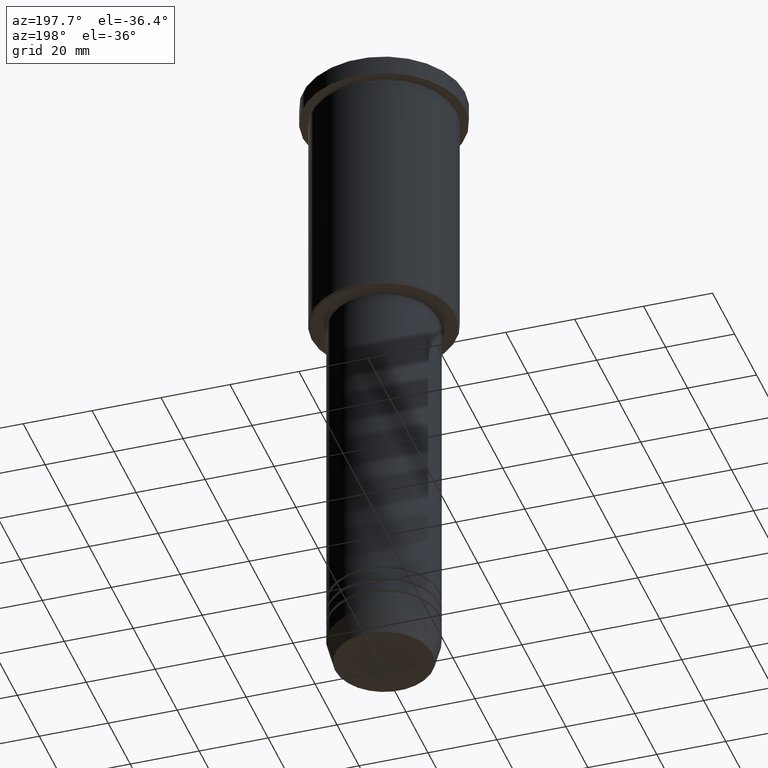
[diagram: clean part render]
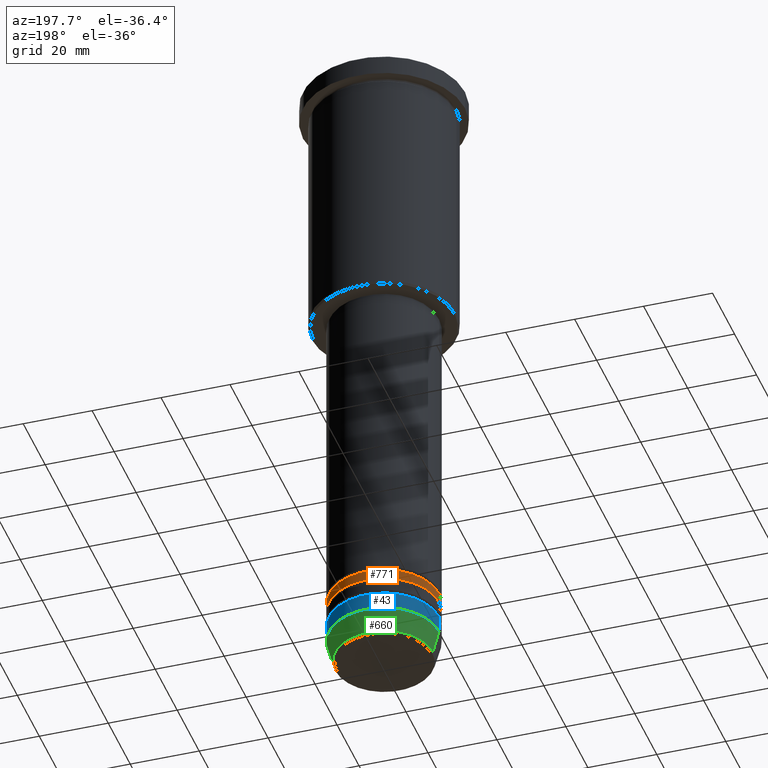
[diagram: same view with three faces highlighted in distinct colors, each labeled with its STEP entity id]
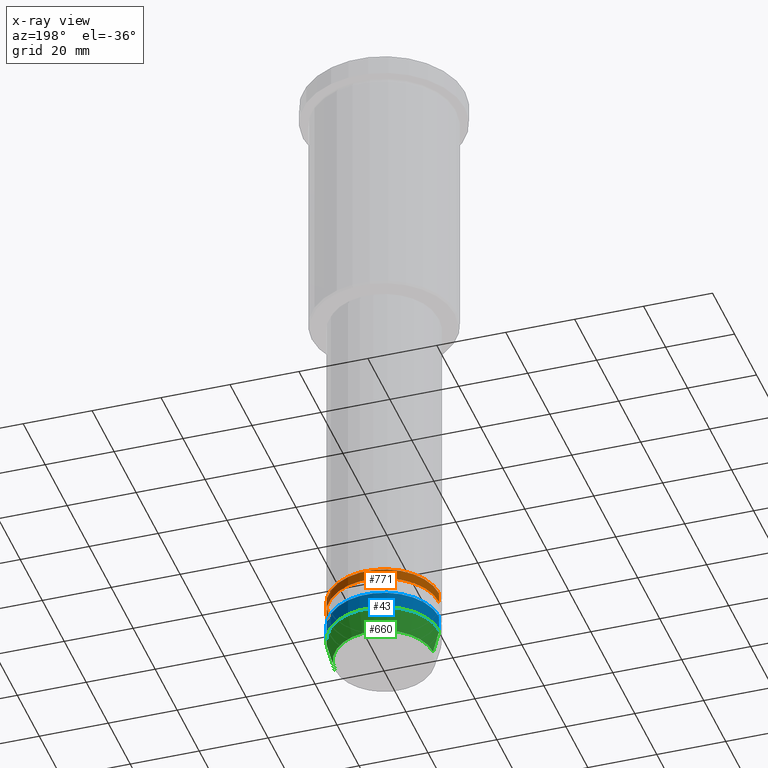
[diagram: x-ray of the same camera — body ghosted, the three highlighted faces saturated]
A machine part, auxiliary view with three faces highlighted in distinct colors.
The next image is the same camera in x-ray (body ghosted, the three faces saturated) — at least one of them is partly hidden behind the body in this view.
Their STEP definitions:

[orange] entity #771 — the highlighted cylindrical surface (partial cylindrical patch) has radius 16 mm, axis along (-0, -0, 1).
#35 = ORIENTED_EDGE ( 'NONE', *, *, #778, .T. ) ;
#36 = DIRECTION ( 'NONE',  ( -0.000000000000000000, -0.000000000000000000, 1.000000000000000000 ) ) ;
#49 = CYLINDRICAL_SURFACE ( 'NONE', #143, 16.00000000000000000 ) ;
#100 = VERTEX_POINT ( 'NONE', #705 ) ;
#129 = CARTESIAN_POINT ( 'NONE',  ( 16.00000000000000000, 0.000000000000000000, -170.9999999999999147 ) ) ;
#143 = AXIS2_PLACEMENT_3D ( 'NONE', #225, #36, #303 ) ;
#183 = VECTOR ( 'NONE', #364, 1000.000000000000000 ) ;
#225 = CARTESIAN_POINT ( 'NONE',  ( 0.000000000000000000, 0.000000000000000000, 0.000000000000000000 ) ) ;
#258 = CIRCLE ( 'NONE', #349, 16.00000000000000000 ) ;
#303 = DIRECTION ( 'NONE',  ( 1.000000000000000000, 0.000000000000000000, 0.000000000000000000 ) ) ;
#321 = VERTEX_POINT ( 'NONE', #129 ) ;
#326 = VERTEX_POINT ( 'NONE', #942 ) ;
#349 = AXIS2_PLACEMENT_3D ( 'NONE', #1161, #775, #609 ) ;
#358 = CARTESIAN_POINT ( 'NONE',  ( 16.00000000000000000, 0.000000000000000000, 0.000000000000000000 ) ) ;
#364 = DIRECTION ( 'NONE',  ( -0.000000000000000000, -0.000000000000000000, 1.000000000000000000 ) ) ;
#388 = CIRCLE ( 'NONE', #709, 16.00000000000000355 ) ;
#402 = DIRECTION ( 'NONE',  ( -0.000000000000000000, -0.000000000000000000, 1.000000000000000000 ) ) ;
#438 = EDGE_CURVE ( 'NONE', #321, #100, #258, .T. ) ;
#533 = ORIENTED_EDGE ( 'NONE', *, *, #1098, .T. ) ;
#577 = DIRECTION ( 'NONE',  ( 1.000000000000000000, 0.000000000000000000, 0.000000000000000000 ) ) ;
#591 = FACE_OUTER_BOUND ( 'NONE', #1054, .T. ) ;
#609 = DIRECTION ( 'NONE',  ( 1.000000000000000000, 0.000000000000000000, 0.000000000000000000 ) ) ;
#612 = EDGE_CURVE ( 'NONE', #326, #321, #906, .T. ) ;
#614 = CARTESIAN_POINT ( 'NONE',  ( -16.00000000000000000, 1.959434878635765131E-15, 0.000000000000000000 ) ) ;
#705 = CARTESIAN_POINT ( 'NONE',  ( -16.00000000000000000, 1.959434878635765131E-15, -170.9999999999999147 ) ) ;
#709 = AXIS2_PLACEMENT_3D ( 'NONE', #924, #402, #577 ) ;
#768 = CARTESIAN_POINT ( 'NONE',  ( -16.00000000000000355, 1.959434878635765526E-15, -173.9999999999999432 ) ) ;
#771 = ADVANCED_FACE ( 'NONE', ( #591 ), #49, .T. ) ;
#775 = DIRECTION ( 'NONE',  ( -0.000000000000000000, -0.000000000000000000, 1.000000000000000000 ) ) ;
#778 = EDGE_CURVE ( 'NONE', #326, #1122, #388, .T. ) ;
#792 = ORIENTED_EDGE ( 'NONE', *, *, #438, .F. ) ;
#906 = LINE ( 'NONE', #358, #183 ) ;
#924 = CARTESIAN_POINT ( 'NONE',  ( 0.000000000000000000, 0.000000000000000000, -173.9999999999999432 ) ) ;
#942 = CARTESIAN_POINT ( 'NONE',  ( 16.00000000000000355, 0.000000000000000000, -173.9999999999999432 ) ) ;
#1054 = EDGE_LOOP ( 'NONE', ( #35, #533, #792, #1127 ) ) ;
#1056 = DIRECTION ( 'NONE',  ( -0.000000000000000000, -0.000000000000000000, 1.000000000000000000 ) ) ;
#1098 = EDGE_CURVE ( 'NONE', #1122, #100, #1139, .T. ) ;
#1122 = VERTEX_POINT ( 'NONE', #768 ) ;
#1127 = ORIENTED_EDGE ( 'NONE', *, *, #612, .F. ) ;
#1139 = LINE ( 'NONE', #614, #1149 ) ;
#1149 = VECTOR ( 'NONE', #1056, 1000.000000000000000 ) ;
#1161 = CARTESIAN_POINT ( 'NONE',  ( 0.000000000000000000, 0.000000000000000000, -170.9999999999999147 ) ) ;

[blue] entity #43 — the highlighted cylindrical surface (partial cylindrical patch) has radius 16 mm, axis along (-0, -0, 1).
#43 = ADVANCED_FACE ( 'NONE', ( #776 ), #1142, .T. ) ;
#60 = EDGE_CURVE ( 'NONE', #1063, #876, #538, .T. ) ;
#110 = DIRECTION ( 'NONE',  ( -0.000000000000000000, -0.000000000000000000, 1.000000000000000000 ) ) ;
#279 = DIRECTION ( 'NONE',  ( 1.000000000000000000, 0.000000000000000000, 0.000000000000000000 ) ) ;
#350 = AXIS2_PLACEMENT_3D ( 'NONE', #734, #444, #279 ) ;
#354 = CARTESIAN_POINT ( 'NONE',  ( 0.000000000000000000, 0.000000000000000000, 0.000000000000000000 ) ) ;
#410 = CARTESIAN_POINT ( 'NONE',  ( 16.00000000000000000, 0.000000000000000000, -184.0000000000000000 ) ) ;
#418 = LINE ( 'NONE', #440, #443 ) ;
#419 = CARTESIAN_POINT ( 'NONE',  ( -16.00000000000000000, 1.959434878635765131E-15, -184.0000000000000000 ) ) ;
#432 = DIRECTION ( 'NONE',  ( 1.000000000000000000, 0.000000000000000000, 0.000000000000000000 ) ) ;
#440 = CARTESIAN_POINT ( 'NONE',  ( -16.00000000000000000, 1.959434878635765131E-15, 0.000000000000000000 ) ) ;
#443 = VECTOR ( 'NONE', #982, 1000.000000000000000 ) ;
#444 = DIRECTION ( 'NONE',  ( -0.000000000000000000, -0.000000000000000000, 1.000000000000000000 ) ) ;
#538 = CIRCLE ( 'NONE', #799, 16.00000000000000000 ) ;
#565 = LINE ( 'NONE', #921, #783 ) ;
#597 = CARTESIAN_POINT ( 'NONE',  ( -16.00000000000000000, 1.959434878635765131E-15, -179.0000000000000284 ) ) ;
#647 = EDGE_CURVE ( 'NONE', #1105, #1117, #918, .T. ) ;
#648 = EDGE_LOOP ( 'NONE', ( #981, #1093, #873, #994 ) ) ;
#680 = EDGE_CURVE ( 'NONE', #1105, #1063, #565, .T. ) ;
#734 = CARTESIAN_POINT ( 'NONE',  ( 0.000000000000000000, 0.000000000000000000, -184.0000000000000000 ) ) ;
#776 = FACE_OUTER_BOUND ( 'NONE', #648, .T. ) ;
#783 = VECTOR ( 'NONE', #110, 1000.000000000000000 ) ;
#796 = CARTESIAN_POINT ( 'NONE',  ( 16.00000000000000000, 0.000000000000000000, -179.0000000000000284 ) ) ;
#797 = CARTESIAN_POINT ( 'NONE',  ( 0.000000000000000000, 0.000000000000000000, -179.0000000000000284 ) ) ;
#799 = AXIS2_PLACEMENT_3D ( 'NONE', #797, #1060, #889 ) ;
#873 = ORIENTED_EDGE ( 'NONE', *, *, #60, .F. ) ;
#876 = VERTEX_POINT ( 'NONE', #597 ) ;
#885 = EDGE_CURVE ( 'NONE', #1117, #876, #418, .T. ) ;
#889 = DIRECTION ( 'NONE',  ( 1.000000000000000000, 0.000000000000000000, 0.000000000000000000 ) ) ;
#918 = CIRCLE ( 'NONE', #350, 16.00000000000000000 ) ;
#921 = CARTESIAN_POINT ( 'NONE',  ( 16.00000000000000000, 0.000000000000000000, 0.000000000000000000 ) ) ;
#967 = DIRECTION ( 'NONE',  ( -0.000000000000000000, -0.000000000000000000, 1.000000000000000000 ) ) ;
#981 = ORIENTED_EDGE ( 'NONE', *, *, #647, .T. ) ;
#982 = DIRECTION ( 'NONE',  ( -0.000000000000000000, -0.000000000000000000, 1.000000000000000000 ) ) ;
#994 = ORIENTED_EDGE ( 'NONE', *, *, #680, .F. ) ;
#1060 = DIRECTION ( 'NONE',  ( -0.000000000000000000, -0.000000000000000000, 1.000000000000000000 ) ) ;
#1063 = VERTEX_POINT ( 'NONE', #796 ) ;
#1093 = ORIENTED_EDGE ( 'NONE', *, *, #885, .T. ) ;
#1105 = VERTEX_POINT ( 'NONE', #410 ) ;
#1117 = VERTEX_POINT ( 'NONE', #419 ) ;
#1126 = AXIS2_PLACEMENT_3D ( 'NONE', #354, #967, #432 ) ;
#1142 = CYLINDRICAL_SURFACE ( 'NONE', #1126, 16.00000000000000000 ) ;

[green] entity #660 — the highlighted conical surface has half-angle 15 deg.
#3 = VERTEX_POINT ( 'NONE', #164 ) ;
#31 = CONICAL_SURFACE ( 'NONE', #748, 16.00000000000000000, 0.2617993877991500740 ) ;
#47 = VECTOR ( 'NONE', #524, 1000.000000000000000 ) ;
#90 = DIRECTION ( 'NONE',  ( -0.000000000000000000, -0.000000000000000000, 1.000000000000000000 ) ) ;
#161 = CARTESIAN_POINT ( 'NONE',  ( -16.00000000000000000, 1.959434878635765131E-15, -184.0000000000000000 ) ) ;
#164 = CARTESIAN_POINT ( 'NONE',  ( 14.22365507213718772, 0.000000000000000000, -190.6294095225512422 ) ) ;
#174 = DIRECTION ( 'NONE',  ( 1.000000000000000000, 0.000000000000000000, 0.000000000000000000 ) ) ;
#202 = DIRECTION ( 'NONE',  ( -0.000000000000000000, -0.000000000000000000, 1.000000000000000000 ) ) ;
#279 = DIRECTION ( 'NONE',  ( 1.000000000000000000, 0.000000000000000000, 0.000000000000000000 ) ) ;
#300 = CIRCLE ( 'NONE', #657, 14.22365507213718772 ) ;
#350 = AXIS2_PLACEMENT_3D ( 'NONE', #734, #444, #279 ) ;
#389 = ORIENTED_EDGE ( 'NONE', *, *, #1000, .T. ) ;
#410 = CARTESIAN_POINT ( 'NONE',  ( 16.00000000000000000, 0.000000000000000000, -184.0000000000000000 ) ) ;
#419 = CARTESIAN_POINT ( 'NONE',  ( -16.00000000000000000, 1.959434878635765131E-15, -184.0000000000000000 ) ) ;
#436 = DIRECTION ( 'NONE',  ( 1.000000000000000000, 0.000000000000000000, 0.000000000000000000 ) ) ;
#444 = DIRECTION ( 'NONE',  ( -0.000000000000000000, -0.000000000000000000, 1.000000000000000000 ) ) ;
#451 = DIRECTION ( 'NONE',  ( 0.2588190451025213501, 0.000000000000000000, 0.9659258262890680902 ) ) ;
#524 = DIRECTION ( 'NONE',  ( -0.2588190451025213501, 3.169619151431772337E-17, 0.9659258262890680902 ) ) ;
#576 = EDGE_LOOP ( 'NONE', ( #389, #1020, #1001, #1133 ) ) ;
#590 = EDGE_CURVE ( 'NONE', #1152, #1117, #965, .T. ) ;
#625 = CARTESIAN_POINT ( 'NONE',  ( 0.000000000000000000, 0.000000000000000000, -190.6294095225512422 ) ) ;
#647 = EDGE_CURVE ( 'NONE', #1105, #1117, #918, .T. ) ;
#657 = AXIS2_PLACEMENT_3D ( 'NONE', #625, #90, #436 ) ;
#660 = ADVANCED_FACE ( 'NONE', ( #1101 ), #31, .T. ) ;
#734 = CARTESIAN_POINT ( 'NONE',  ( 0.000000000000000000, 0.000000000000000000, -184.0000000000000000 ) ) ;
#748 = AXIS2_PLACEMENT_3D ( 'NONE', #1080, #202, #174 ) ;
#766 = VECTOR ( 'NONE', #451, 1000.000000000000000 ) ;
#790 = LINE ( 'NONE', #1059, #766 ) ;
#918 = CIRCLE ( 'NONE', #350, 16.00000000000000000 ) ;
#964 = CARTESIAN_POINT ( 'NONE',  ( -14.22365507213718772, 1.850665122131323337E-15, -190.6294095225512422 ) ) ;
#965 = LINE ( 'NONE', #161, #47 ) ;
#1000 = EDGE_CURVE ( 'NONE', #3, #1152, #300, .T. ) ;
#1001 = ORIENTED_EDGE ( 'NONE', *, *, #647, .F. ) ;
#1009 = EDGE_CURVE ( 'NONE', #3, #1105, #790, .T. ) ;
#1020 = ORIENTED_EDGE ( 'NONE', *, *, #590, .T. ) ;
#1059 = CARTESIAN_POINT ( 'NONE',  ( 16.00000000000000000, 0.000000000000000000, -184.0000000000000000 ) ) ;
#1080 = CARTESIAN_POINT ( 'NONE',  ( 0.000000000000000000, 0.000000000000000000, -184.0000000000000000 ) ) ;
#1101 = FACE_OUTER_BOUND ( 'NONE', #576, .T. ) ;
#1105 = VERTEX_POINT ( 'NONE', #410 ) ;
#1117 = VERTEX_POINT ( 'NONE', #419 ) ;
#1133 = ORIENTED_EDGE ( 'NONE', *, *, #1009, .F. ) ;
#1152 = VERTEX_POINT ( 'NONE', #964 ) ;